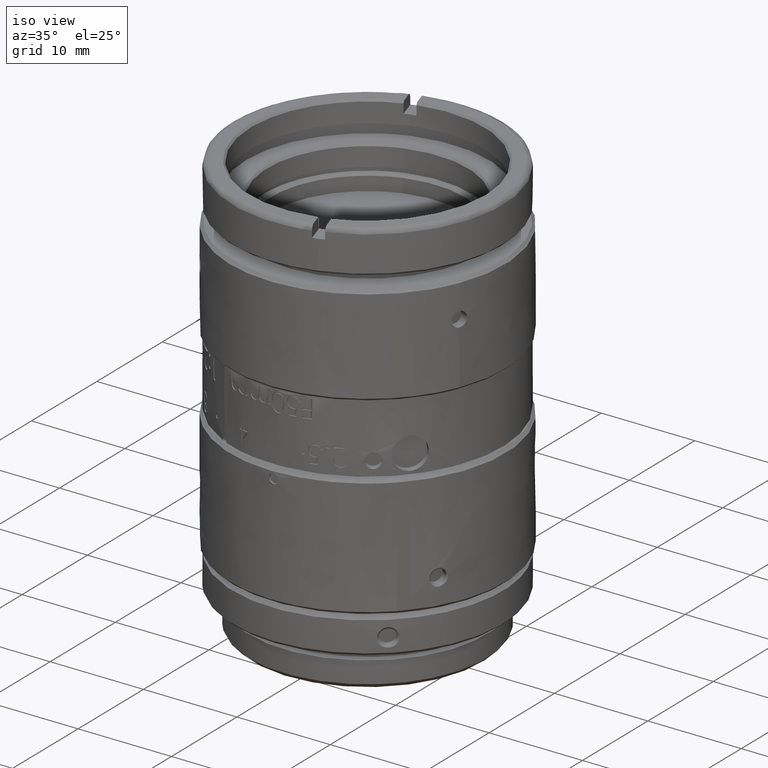
[diagram: clean part render]
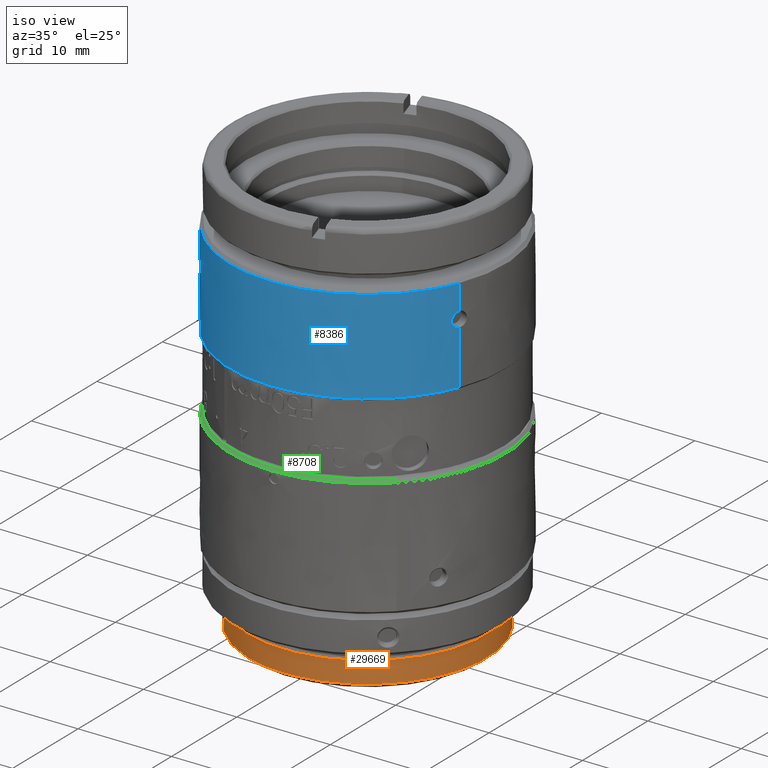
[diagram: same view with three faces highlighted in distinct colors, each labeled with its STEP entity id]
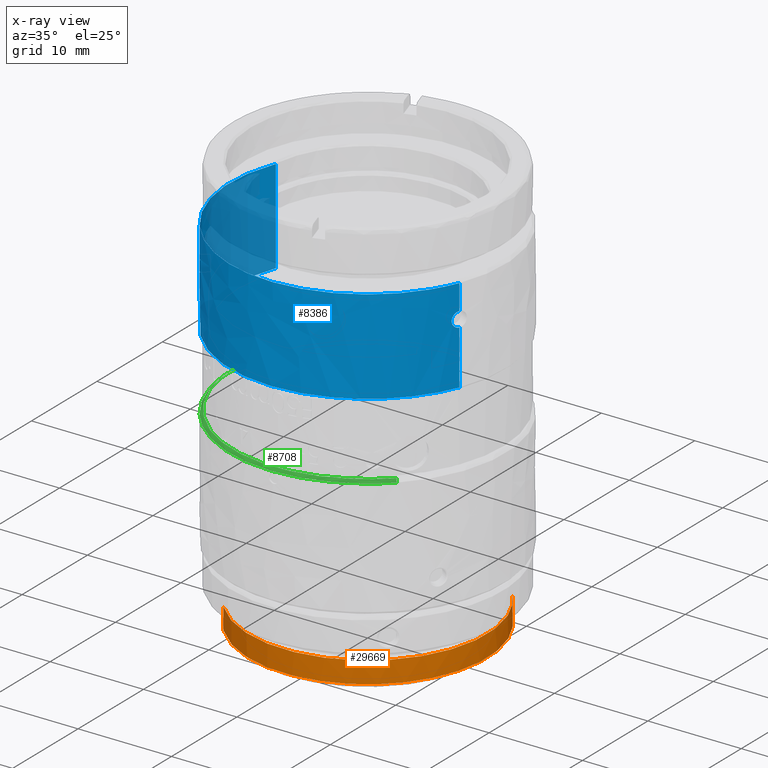
[diagram: x-ray of the same camera — body ghosted, the three highlighted faces saturated]
A machine part, iso view with three faces highlighted in distinct colors.
The next image is the same camera in x-ray (body ghosted, the three faces saturated) — at least one of them is partly hidden behind the body in this view.
Their STEP definitions:

[orange] entity #29669 — the highlighted face is a freeform B-spline surface patch.
#586 = EDGE_CURVE ( 'NONE', #8446, #26066, #36931, .T. ) ;
#1912 = CARTESIAN_POINT ( 'NONE',  ( 14.09362193333980962, -4.440152235878109366, -20.33400299199999850 ) ) ;
#2297 = CARTESIAN_POINT ( 'NONE',  ( 10.01426864739965872, 7.935854617584350734, -18.03400299199999779 ) ) ;
#2491 = CARTESIAN_POINT ( 'NONE',  ( 2.691176087841211206, -12.49083409748489792, -18.03400299200000489 ) ) ;
#2926 = CARTESIAN_POINT ( 'NONE',  ( 9.452440149999999264, 8.556510690999999724, -20.33400299199999850 ) ) ;
#3205 = CARTESIAN_POINT ( 'NONE',  ( -4.440152238768755311, -14.09362193242912120, -20.33400299199999850 ) ) ;
#3238 = CARTESIAN_POINT ( 'NONE',  ( 9.452440147826170147, 8.556510690219679915, -18.03400299200000134 ) ) ;
#3703 = CARTESIAN_POINT ( 'NONE',  ( 9.452440149999999264, 8.556510690999999724, -20.33400299199999850 ) ) ;
#3820 = EDGE_CURVE ( 'NONE', #26066, #7376, #12356, .T. ) ;
#4636 = CARTESIAN_POINT ( 'NONE',  ( -4.440152238768759752, -14.09362193242911587, -18.03400299200000134 ) ) ;
#5204 = CARTESIAN_POINT ( 'NONE',  ( 12.77584863667640747, 0.2026250590301136856, -18.03400299200000134 ) ) ;
#5394 = CARTESIAN_POINT ( 'NONE',  ( -1.469660650535759894, -12.69265389404754352, -18.03400299200000134 ) ) ;
#7376 = VERTEX_POINT ( 'NONE', #3703 ) ;
#7545 = FACE_OUTER_BOUND ( 'NONE', #15834, .T. ) ;
#7738 = CARTESIAN_POINT ( 'NONE',  ( -9.452440153509938270, -8.556510687122543146, -18.03400299200000134 ) ) ;
#7922 = CARTESIAN_POINT ( 'NONE',  ( 7.935854617584363169, -10.01426864739964806, -18.03400299199999779 ) ) ;
#8259 = CARTESIAN_POINT ( 'NONE',  ( -9.452440149999999264, -8.556510690999999724, -20.33400299199999850 ) ) ;
#8446 = VERTEX_POINT ( 'NONE', #37193 ) ;
#8500 = CARTESIAN_POINT ( 'NONE',  ( 9.452440147826170147, 8.556510690219679915, -18.03400299200000134 ) ) ;
#8694 = CARTESIAN_POINT ( 'NONE',  ( 11.37005572431445977, 5.829682528603695957, -18.03400299200000134 ) ) ;
#9036 = CARTESIAN_POINT ( 'NONE',  ( 14.46472806701254044, 3.019399447749500531, -20.33400299199999850 ) ) ;
#10598 = B_SPLINE_CURVE_WITH_KNOTS ( 'NONE', 3,
 ( #35266, #31576, #32161, #37789, #11042, #11429, #17440, #20143, #5394, #13741, #22852, #2491, #14336, #11232, #26346, #37594, #7922, #34690, #23045, #26150, #31772, #25768, #23439, #25568, #23243, #5204, #19942, #37406, #17049, #28871, #8694, #35075, #2297, #8500 ),
 .UNSPECIFIED., .F., .F.,
 ( 4, 2, 2, 2, 2, 2, 2, 2, 2, 2, 2, 2, 2, 2, 2, 2, 4 ),
 ( 3.877282678615039835, 4.073632219464402127, 4.269981760313763530, 4.466331301163125822, 4.662680842012488114, 4.859030382861850406, 5.055379923711211809, 5.251729464560574101, 5.448079005409935505, 5.644428546259297796, 5.840778087108660088, 6.037127627958021492, 6.233477168807382895, 6.429826709656744299, 6.626176250506107479, 6.822525791355468883, 7.018875332204830286 ),
 .UNSPECIFIED. ) ;
#10666 = CARTESIAN_POINT ( 'NONE',  ( 8.556510689061271435, -9.452440151754968767, -20.33400299199999850 ) ) ;
#11042 = CARTESIAN_POINT ( 'NONE',  ( -6.215057767382758058, -11.16406836682318193, -18.03400299199999779 ) ) ;
#11232 = CARTESIAN_POINT ( 'NONE',  ( 5.076306755173630059, -11.72580380451822357, -18.03400299200000134 ) ) ;
#11429 = CARTESIAN_POINT ( 'NONE',  ( -4.701904462277791907, -11.88088631942793327, -18.03400299200000134 ) ) ;
#12356 =( BOUNDED_CURVE ( )  B_SPLINE_CURVE ( 3, ( #29073, #3205, #14858, #26683, #35599, #9036, #32690 ),
 .UNSPECIFIED., .F., .T. ) 
 B_SPLINE_CURVE_WITH_KNOTS ( ( 4, 3, 4 ),
 ( -7.018875332204830286, -5.448079005409935505, -3.877282678615039835 ),
 .UNSPECIFIED. ) 
 CURVE ( )  GEOMETRIC_REPRESENTATION_ITEM ( )  RATIONAL_B_SPLINE_CURVE ( ( 1.000000000000000000, 0.8047378540760217192, 0.8047378540760217192, 1.000000000000000000, 0.8047378540760217192, 0.8047378540760217192, 1.000000000000000000 ) ) 
 REPRESENTATION_ITEM ( '' )  );
#13741 = CARTESIAN_POINT ( 'NONE',  ( 0.2026250590301297283, -12.77584863667641102, -18.03400299199999779 ) ) ;
#14336 = CARTESIAN_POINT ( 'NONE',  ( 3.499478974160446398, -12.28889794128224189, -18.03400299200000134 ) ) ;
#14858 = CARTESIAN_POINT ( 'NONE',  ( 3.019399444782739028, -14.46472806763182994, -20.33400299199999850 ) ) ;
#15796 = ORIENTED_EDGE ( 'NONE', *, *, #586, .T. ) ;
#15834 = EDGE_LOOP ( 'NONE', ( #15796, #34970, #25566, #37362 ) ) ;
#16993 = VERTEX_POINT ( 'NONE', #3238 ) ;
#17049 = CARTESIAN_POINT ( 'NONE',  ( 12.28889794128223656, 3.499478974160471267, -18.03400299200000134 ) ) ;
#17440 = CARTESIAN_POINT ( 'NONE',  ( -3.917635443712708110, -12.16205152661567546, -18.03400299200000134 ) ) ;
#18319 = EDGE_CURVE ( 'NONE', #8446, #16993, #10598, .T. ) ;
#18750 = EDGE_CURVE ( 'NONE', #7376, #16993, #19371, .T. ) ;
#19371 = B_SPLINE_CURVE_WITH_KNOTS ( 'NONE', 1,
 ( #2926, #20957 ),
 .UNSPECIFIED., .F., .F.,
 ( 2, 2 ),
 ( -1.000000000000000000, 0.0000000000000000000 ),
 .UNSPECIFIED. ) ;
#19769 = CARTESIAN_POINT ( 'NONE',  ( 8.556510689061271435, -9.452440151754968767, -18.03400299200000134 ) ) ;
#19942 = CARTESIAN_POINT ( 'NONE',  ( 12.73548466205848939, 1.034792392850838905, -18.03400299200000134 ) ) ;
#20143 = CARTESIAN_POINT ( 'NONE',  ( -2.293712751084343804, -12.56989447203539534, -18.03400299200000489 ) ) ;
#20281 = CARTESIAN_POINT ( 'NONE',  ( -9.452440150678338426, -8.556510687068859866, -18.03400299200000134 ) ) ;
#20957 = CARTESIAN_POINT ( 'NONE',  ( 9.452440147826170147, 8.556510690219679915, -18.03400299200000134 ) ) ;
#22477 = CARTESIAN_POINT ( 'NONE',  ( 14.46472806701254221, 3.019399447749500087, -18.03400299200000134 ) ) ;
#22700 =( BOUNDED_SURFACE ( )  B_SPLINE_SURFACE ( 1, 3, ( 
 ( #34318, #22477, #37227, #19769, #33919, #4636, #7738 ),
 ( #28490, #31395, #1912, #10666, #25196, #37030, #25584 ) ),
 .UNSPECIFIED., .F., .F., .T. ) 
 B_SPLINE_SURFACE_WITH_KNOTS ( ( 2, 2 ),
 ( 4, 3, 4 ),
 ( 0.0000000000000000000, 1.000000000000000000 ),
 ( 0.0000000000000000000, 0.5000000000000000000, 1.000000000000000000 ),
 .UNSPECIFIED. ) 
 GEOMETRIC_REPRESENTATION_ITEM ( )  RATIONAL_B_SPLINE_SURFACE ( (
 ( 1.000000000000000000, 0.8047378540760217192, 0.8047378540760217192, 1.000000000000000000, 0.8047378540760217192, 0.8047378540760217192, 1.000000000000000000),
 ( 1.000000000000000000, 0.8047378540760217192, 0.8047378540760217192, 1.000000000000000000, 0.8047378540760217192, 0.8047378540760217192, 1.000000000000000000) ) ) 
 REPRESENTATION_ITEM ( '' )  SURFACE ( )  );
#22852 = CARTESIAN_POINT ( 'NONE',  ( 1.034792392850814480, -12.73548466205849117, -18.03400299199999424 ) ) ;
#23045 = CARTESIAN_POINT ( 'NONE',  ( 9.737056317180268650, -8.273638854562976874, -18.03400299200000134 ) ) ;
#23243 = CARTESIAN_POINT ( 'NONE',  ( 12.69265389404753996, -1.469660650535744351, -18.03400299199999424 ) ) ;
#23439 = CARTESIAN_POINT ( 'NONE',  ( 12.16205152661567901, -3.917635443712687238, -18.03400299200000134 ) ) ;
#25196 = CARTESIAN_POINT ( 'NONE',  ( 3.019399444782734143, -14.46472806763183172, -20.33400299199999850 ) ) ;
#25566 = ORIENTED_EDGE ( 'NONE', *, *, #18750, .T. ) ;
#25568 = CARTESIAN_POINT ( 'NONE',  ( 12.56989447203538823, -2.293712751084368673, -18.03400299199999779 ) ) ;
#25584 = CARTESIAN_POINT ( 'NONE',  ( -9.452440153509938270, -8.556510687122543146, -20.33400299199999850 ) ) ;
#25768 = CARTESIAN_POINT ( 'NONE',  ( 11.88088631942793150, -4.701904462277787466, -18.03400299200000134 ) ) ;
#26066 = VERTEX_POINT ( 'NONE', #30854 ) ;
#26150 = CARTESIAN_POINT ( 'NONE',  ( 10.73530235251893927, -6.929404630534406806, -18.03400299200000134 ) ) ;
#26346 = CARTESIAN_POINT ( 'NONE',  ( 5.829682528603718161, -11.37005572431444556, -18.03400299200000134 ) ) ;
#26683 = CARTESIAN_POINT ( 'NONE',  ( 8.556510689061274988, -9.452440151754966990, -20.33400299199999850 ) ) ;
#28490 = CARTESIAN_POINT ( 'NONE',  ( 9.452440149999999264, 8.556510690999999724, -20.33400299199999850 ) ) ;
#28871 = CARTESIAN_POINT ( 'NONE',  ( 11.72580380451823423, 5.076306755173606966, -18.03400299200000134 ) ) ;
#29073 = CARTESIAN_POINT ( 'NONE',  ( -9.452440149999999264, -8.556510690999999724, -20.33400299199999850 ) ) ;
#29669 = ADVANCED_FACE ( 'NONE', ( #7545 ), #22700, .F. ) ;
#30854 = CARTESIAN_POINT ( 'NONE',  ( -9.452440149999999264, -8.556510690999999724, -20.33400299199999850 ) ) ;
#31395 = CARTESIAN_POINT ( 'NONE',  ( 14.46472806701254221, 3.019399447749500087, -20.33400299199999850 ) ) ;
#31576 = CARTESIAN_POINT ( 'NONE',  ( -8.890611642630634748, -9.177166756338655418, -18.03400299200000845 ) ) ;
#31772 = CARTESIAN_POINT ( 'NONE',  ( 11.16406836682317483, -6.215057767382764276, -18.03400299200000134 ) ) ;
#32161 = CARTESIAN_POINT ( 'NONE',  ( -8.273638854562976874, -9.737056317180273979, -18.03400299200000845 ) ) ;
#32690 = CARTESIAN_POINT ( 'NONE',  ( 9.452440149999999264, 8.556510690999999724, -20.33400299199999850 ) ) ;
#33919 = CARTESIAN_POINT ( 'NONE',  ( 3.019399444782734143, -14.46472806763183172, -18.03400299200000134 ) ) ;
#34318 = CARTESIAN_POINT ( 'NONE',  ( 9.452440149999999264, 8.556510690999999724, -18.03400299200000134 ) ) ;
#34690 = CARTESIAN_POINT ( 'NONE',  ( 9.177166756338642983, -8.890611642630647182, -18.03400299200000134 ) ) ;
#34970 = ORIENTED_EDGE ( 'NONE', *, *, #3820, .T. ) ;
#35075 = CARTESIAN_POINT ( 'NONE',  ( 10.51015746373641768, 7.266357772037366658, -18.03400299200000134 ) ) ;
#35266 = CARTESIAN_POINT ( 'NONE',  ( -9.452440150678338426, -8.556510687068859866, -18.03400299200000134 ) ) ;
#35599 = CARTESIAN_POINT ( 'NONE',  ( 14.09362193333981317, -4.440152235878106701, -20.33400299199999850 ) ) ;
#36931 = B_SPLINE_CURVE_WITH_KNOTS ( 'NONE', 1,
 ( #20281, #8259 ),
 .UNSPECIFIED., .F., .F.,
 ( 2, 2 ),
 ( -1.000000000000000000, 0.0000000000000000000 ),
 .UNSPECIFIED. ) ;
#37030 = CARTESIAN_POINT ( 'NONE',  ( -4.440152238768759752, -14.09362193242911587, -20.33400299199999850 ) ) ;
#37193 = CARTESIAN_POINT ( 'NONE',  ( -9.452440150678338426, -8.556510687068859866, -18.03400299200000134 ) ) ;
#37227 = CARTESIAN_POINT ( 'NONE',  ( 14.09362193333980962, -4.440152235878109366, -18.03400299200000134 ) ) ;
#37362 = ORIENTED_EDGE ( 'NONE', *, *, #18319, .F. ) ;
#37406 = CARTESIAN_POINT ( 'NONE',  ( 12.49083409748490148, 2.691176087841189002, -18.03400299200000134 ) ) ;
#37594 = CARTESIAN_POINT ( 'NONE',  ( 7.266357772037350671, -10.51015746373642479, -18.03400299200000134 ) ) ;
#37789 = CARTESIAN_POINT ( 'NONE',  ( -6.929404630534409470, -10.73530235251894283, -18.03400299200000134 ) ) ;

[blue] entity #8386 — the highlighted face is a freeform B-spline surface patch.
#165 = CARTESIAN_POINT ( 'NONE',  ( 13.68235708167017961, -5.509592062819060665, 14.01599700981326002 ) ) ;
#555 = CARTESIAN_POINT ( 'NONE',  ( -13.68235708288267993, 5.509592059807990161, 8.215997007999998658 ) ) ;
#664 = CARTESIAN_POINT ( 'NONE',  ( -11.51556347944723591, -9.217726514464605003, 15.60224241035068715 ) ) ;
#1420 = CARTESIAN_POINT ( 'NONE',  ( -11.24639722347032844, -9.543675491048857040, 15.36757187291662774 ) ) ;
#2373 = CARTESIAN_POINT ( 'NONE',  ( -13.68235708288267993, 5.509592059807990161, 8.215997007999998658 ) ) ;
#2585 = VERTEX_POINT ( 'NONE', #26540 ) ;
#2599 = CARTESIAN_POINT ( 'NONE',  ( -11.95763573701262317, -8.635845591770307195, 14.25851714775831702 ) ) ;
#2714 = CARTESIAN_POINT ( 'NONE',  ( 2.663172958595262152, -32.87430621033874445, 18.31599700800000363 ) ) ;
#2789 = CARTESIAN_POINT ( 'NONE',  ( -11.61773550855505555, -9.088251009621709287, 14.01603114193942723 ) ) ;
#3261 = CARTESIAN_POINT ( 'NONE',  ( -13.68235708200000111, 5.509592062000000290, 18.31599700800000008 ) ) ;
#3287 = CARTESIAN_POINT ( 'NONE',  ( 13.68235708200000111, -5.509592062000000290, 18.31599700800000008 ) ) ;
#3446 = ORIENTED_EDGE ( 'NONE', *, *, #30664, .T. ) ;
#3720 = CARTESIAN_POINT ( 'NONE',  ( 13.68235708167017961, -5.509592062819060665, 14.01599700981326002 ) ) ;
#4028 = B_SPLINE_CURVE_WITH_KNOTS ( 'NONE', 3,
 ( #21490, #18942, #24204, #33122, #6559, #15182 ),
 .UNSPECIFIED., .F., .F.,
 ( 4, 2, 4 ),
 ( -1.000000000000000000, -0.5000000000000000000, 0.0000000000000000000 ),
 .UNSPECIFIED. ) ;
#4070 = CARTESIAN_POINT ( 'NONE',  ( -24.70154119053584196, -21.85512209599322020, 8.215997007999998658 ) ) ;
#5109 = CARTESIAN_POINT ( 'NONE',  ( -13.52453127885180173, -10.45491277192476076, 18.31599700800002850 ) ) ;
#5121 = CARTESIAN_POINT ( 'NONE',  ( -11.62340584578138980, -9.081252532821091350, 14.01614781796579301 ) ) ;
#5295 = VERTEX_POINT ( 'NONE', #3287 ) ;
#5312 = CARTESIAN_POINT ( 'NONE',  ( -11.61548858936645345, -9.090996606908896993, 14.01600885342631564 ) ) ;
#5700 = CARTESIAN_POINT ( 'NONE',  ( -11.10346680085514137, -9.711858809678208360, 14.60655478045492650 ) ) ;
#6040 = CARTESIAN_POINT ( 'NONE',  ( 13.36339234489444117, -6.243576302392490618, 14.81600063145799950 ) ) ;
#6092 = CARTESIAN_POINT ( 'NONE',  ( 13.68235708288267993, -5.509592059807990161, 8.215997007999998658 ) ) ;
#6559 = CARTESIAN_POINT ( 'NONE',  ( 13.36674891276259203, -6.244927917667555839, 15.02543554817104621 ) ) ;
#6677 = CARTESIAN_POINT ( 'NONE',  ( -11.61066778704470259, -9.097117186970308467, 15.61599694167146168 ) ) ;
#6716 = EDGE_CURVE ( 'NONE', #14126, #5295, #16530, .T. ) ;
#6734 = CARTESIAN_POINT ( 'NONE',  ( -11.10227277600935913, -9.710923706208038908, 14.81599700978543943 ) ) ;
#6868 = CARTESIAN_POINT ( 'NONE',  ( -11.61130963459434007, -9.096245962965676668, 15.61599478686907716 ) ) ;
#7053 = CARTESIAN_POINT ( 'NONE',  ( -11.33275258987730361, -9.441464674763734521, 15.50346821470424352 ) ) ;
#7426 = EDGE_CURVE ( 'NONE', #2585, #19503, #8631, .T. ) ;
#7433 = CARTESIAN_POINT ( 'NONE',  ( 13.68235708200000111, -5.509592062000000290, 18.31599700800000008 ) ) ;
#8029 = CARTESIAN_POINT ( 'NONE',  ( -11.70902274838069168, -8.970700466981080368, 14.02975135233807791 ) ) ;
#8211 = CARTESIAN_POINT ( 'NONE',  ( 13.68235708200000111, -5.509592062000000290, 18.31599700800000008 ) ) ;
#8386 = ADVANCED_FACE ( 'NONE', ( #10879, #34128 ), #22747, .F. ) ;
#8416 = CARTESIAN_POINT ( 'NONE',  ( -11.80127128629628608, -8.848445993535943188, 14.07096678169651405 ) ) ;
#8466 = CARTESIAN_POINT ( 'NONE',  ( 13.68235671890329996, -5.509592962936210370, 15.61599700600589991 ) ) ;
#8609 = CARTESIAN_POINT ( 'NONE',  ( -11.65055604071091544, -9.046823570338743181, 14.01812594407291179 ) ) ;
#8631 = B_SPLINE_CURVE_WITH_KNOTS ( 'NONE', 3,
 ( #6040, #36657, #36467, #37041, #34327, #31207, #22488, #34124, #21730, #27549 ),
 .UNSPECIFIED., .F., .F.,
 ( 4, 2, 2, 2, 4 ),
 ( 0.0000000000000000000, 0.2500000000000000000, 0.5000000000000000000, 0.7500000000000000000, 1.000000000000000000 ),
 .UNSPECIFIED. ) ;
#9417 = CARTESIAN_POINT ( 'NONE',  ( -11.73724803577634113, -8.926065243232622848, 15.61600127666865312 ) ) ;
#9600 = CARTESIAN_POINT ( 'NONE',  ( -11.58489585566725921, -9.130704588995085302, 15.61480209819819009 ) ) ;
#9920 = EDGE_LOOP ( 'NONE', ( #27573, #18632 ) ) ;
#9977 = CARTESIAN_POINT ( 'NONE',  ( -11.59690585113510686, -9.115218318130612118, 15.61560031027322282 ) ) ;
#10097 = CARTESIAN_POINT ( 'NONE',  ( -24.70154119053584196, -21.85512209599322020, 18.31599700800000363 ) ) ;
#10177 = CARTESIAN_POINT ( 'NONE',  ( -12.08879185901382058, -8.451249103484791192, 14.81599700961455746 ) ) ;
#10879 = FACE_OUTER_BOUND ( 'NONE', #21776, .T. ) ;
#11153 = CARTESIAN_POINT ( 'NONE',  ( -11.88242565701219355, -8.739593483527569262, 14.12852521825215213 ) ) ;
#11351 = CARTESIAN_POINT ( 'NONE',  ( -11.95817458981677106, -8.635102045816614336, 14.25948013214878252 ) ) ;
#11922 = CARTESIAN_POINT ( 'NONE',  ( -12.04590873322286271, -8.513509739088714667, 14.47288103449846552 ) ) ;
#12894 = CARTESIAN_POINT ( 'NONE',  ( -11.24183482926203759, -9.549073705345437091, 15.36011974946032943 ) ) ;
#13278 = CARTESIAN_POINT ( 'NONE',  ( -11.57545528086257924, -9.142718969472344526, 15.61386800823280474 ) ) ;
#13461 = CARTESIAN_POINT ( 'NONE',  ( -5.509592064806295930, -13.68235708086996816, 18.31599700800001784 ) ) ;
#14126 = VERTEX_POINT ( 'NONE', #3261 ) ;
#14817 = CARTESIAN_POINT ( 'NONE',  ( -11.15864976893979765, -9.645560539840113634, 14.39840232878442983 ) ) ;
#15182 = CARTESIAN_POINT ( 'NONE',  ( 13.36339234489444117, -6.243576302392490618, 14.81600063145799950 ) ) ;
#15378 = ORIENTED_EDGE ( 'NONE', *, *, #6716, .F. ) ;
#15614 = CARTESIAN_POINT ( 'NONE',  ( -12.08998563505075019, -8.452184013014337083, 15.02543923575024465 ) ) ;
#15714 = ORIENTED_EDGE ( 'NONE', *, *, #33989, .T. ) ;
#15960 = EDGE_CURVE ( 'NONE', #14126, #16903, #30142, .T. ) ;
#16530 =( BOUNDED_CURVE ( )  B_SPLINE_CURVE ( 3, ( #28192, #28577, #5109, #13461, #33812, #34004, #7433 ),
 .UNSPECIFIED., .F., .T. ) 
 B_SPLINE_CURVE_WITH_KNOTS ( ( 4, 3, 4 ),
 ( -5.900371948017450130, -4.329575621222552684, -2.758779294427655238 ),
 .UNSPECIFIED. ) 
 CURVE ( )  GEOMETRIC_REPRESENTATION_ITEM ( )  RATIONAL_B_SPLINE_CURVE ( ( 1.000000000000000000, 0.8047378540760217192, 0.8047378540760217192, 1.000000000000000000, 0.8047378540760217192, 0.8047378540760217192, 1.000000000000000000 ) ) 
 REPRESENTATION_ITEM ( '' )  );
#16803 = ORIENTED_EDGE ( 'NONE', *, *, #33930, .F. ) ;
#16903 = VERTEX_POINT ( 'NONE', #555 ) ;
#17163 = CARTESIAN_POINT ( 'NONE',  ( -11.10227277600935913, -9.710923706208038908, 14.81599700978543943 ) ) ;
#17277 = CARTESIAN_POINT ( 'NONE',  ( 13.68235708101055259, -5.509592064457166316, 18.31599700800000008 ) ) ;
#17357 = CARTESIAN_POINT ( 'NONE',  ( -12.03185439175387472, -8.533120614538120208, 14.42582035854628764 ) ) ;
#17899 = CARTESIAN_POINT ( 'NONE',  ( 13.68235708288267993, -5.509592059807990161, 8.215997007999998658 ) ) ;
#18069 = CARTESIAN_POINT ( 'NONE',  ( -13.68235708288267993, 5.509592059807990161, 8.215997007999998658 ) ) ;
#18512 = CARTESIAN_POINT ( 'NONE',  ( -11.86191425784278763, -8.759306997472556588, 15.52978470782020359 ) ) ;
#18546 = VERTEX_POINT ( 'NONE', #6092 ) ;
#18632 = ORIENTED_EDGE ( 'NONE', *, *, #25823, .F. ) ;
#18697 = CARTESIAN_POINT ( 'NONE',  ( -11.25005462177046844, -9.539347583727323610, 15.37347697486235809 ) ) ;
#18814 = CARTESIAN_POINT ( 'NONE',  ( 13.68235708101055259, -5.509592064457166316, 8.215997007999998658 ) ) ;
#18883 = CARTESIAN_POINT ( 'NONE',  ( -11.60780948467488649, -9.100925458729230755, 15.61596287247613546 ) ) ;
#18942 = CARTESIAN_POINT ( 'NONE',  ( 13.60076641248455154, -5.702524685230715207, 15.61599548439157559 ) ) ;
#19503 = VERTEX_POINT ( 'NONE', #165 ) ;
#19865 = CARTESIAN_POINT ( 'NONE',  ( -12.08934767587951598, -8.451684392750836494, 14.71835924846811317 ) ) ;
#20062 = CARTESIAN_POINT ( 'NONE',  ( -11.68255672210671037, -9.005419462689363996, 14.02327518324998401 ) ) ;
#20214 = CARTESIAN_POINT ( 'NONE',  ( -13.68235708200000111, 5.509592062000000290, 18.31599700800000008 ) ) ;
#20247 = CARTESIAN_POINT ( 'NONE',  ( -11.61472341055928403, -9.091938601059817771, 14.01599707432988495 ) ) ;
#20440 = CARTESIAN_POINT ( 'NONE',  ( -11.96510793733801137, -8.625534850279857224, 14.27187365463405300 ) ) ;
#20973 = CARTESIAN_POINT ( 'NONE',  ( 13.68235708288267993, -5.509592059807990161, 8.215997007999998658 ) ) ;
#21490 = CARTESIAN_POINT ( 'NONE',  ( 13.68235671890329996, -5.509592962936210370, 15.61599700600589991 ) ) ;
#21612 = CARTESIAN_POINT ( 'NONE',  ( -11.11497170781224142, -9.697872203691716209, 15.01448627950382075 ) ) ;
#21730 = CARTESIAN_POINT ( 'NONE',  ( 13.65391210612216533, -5.580231468696684516, 14.01599700819073924 ) ) ;
#21776 = EDGE_LOOP ( 'NONE', ( #3446, #15714, #38195, #16803, #29137, #15378, #37258 ) ) ;
#21803 = CARTESIAN_POINT ( 'NONE',  ( -11.24946175527193937, -9.540049102633137323, 15.37251376918943180 ) ) ;
#21987 = CARTESIAN_POINT ( 'NONE',  ( -11.15243889782633069, -9.654370416861780768, 15.15910692775467794 ) ) ;
#22488 = CARTESIAN_POINT ( 'NONE',  ( 13.54182151963166270, -5.846480850519602868, 14.09644702021411788 ) ) ;
#22514 = B_SPLINE_CURVE_WITH_KNOTS ( 'NONE', 1,
 ( #22949, #8211 ),
 .UNSPECIFIED., .F., .F.,
 ( 2, 2 ),
 ( -1.000000000000000000, 0.0000000000000000000 ),
 .UNSPECIFIED. ) ;
#22747 =( BOUNDED_SURFACE ( )  B_SPLINE_SURFACE ( 1, 3, ( 
 ( #37436, #4070, #33556, #18814 ),
 ( #36660, #10097, #2714, #17277 ) ),
 .UNSPECIFIED., .F., .F., .T. ) 
 B_SPLINE_SURFACE_WITH_KNOTS ( ( 2, 2 ),
 ( 4, 4 ),
 ( 0.0000000000000000000, 1.000000000000000000 ),
 ( 0.0000000000000000000, 1.000000000000000000 ),
 .UNSPECIFIED. ) 
 GEOMETRIC_REPRESENTATION_ITEM ( )  RATIONAL_B_SPLINE_SURFACE ( (
 ( 1.000000000000000000, 0.3333333335299311084, 0.3333333335299311084, 1.000000000000000000),
 ( 1.000000000000000000, 0.3333333335299311084, 0.3333333335299311084, 1.000000000000000000) ) ) 
 REPRESENTATION_ITEM ( '' )  SURFACE ( )  );
#22949 = CARTESIAN_POINT ( 'NONE',  ( 13.68235671890329996, -5.509592962936210370, 15.61599700600589991 ) ) ;
#23161 = CARTESIAN_POINT ( 'NONE',  ( -11.62899828339395292, -9.074239799992412259, 14.01639369047473238 ) ) ;
#24204 = CARTESIAN_POINT ( 'NONE',  ( 13.51965988339253322, -5.894255010833521879, 15.52977632578964595 ) ) ;
#24893 = CARTESIAN_POINT ( 'NONE',  ( -11.41898168920269363, -9.336587263974800877, 15.56102674407622999 ) ) ;
#25628 = VERTEX_POINT ( 'NONE', #8466 ) ;
#25823 = EDGE_CURVE ( 'NONE', #30294, #27282, #26777, .T. ) ;
#25877 = CARTESIAN_POINT ( 'NONE',  ( -12.00638343143182496, -8.568469527267957631, 14.35862153864759883 ) ) ;
#26458 = CARTESIAN_POINT ( 'NONE',  ( -12.08879185901382058, -8.451249103484791192, 14.81599700961455746 ) ) ;
#26540 = CARTESIAN_POINT ( 'NONE',  ( 13.36339234489444117, -6.243576302392490618, 14.81600063145799950 ) ) ;
#26639 = CARTESIAN_POINT ( 'NONE',  ( -11.98227164402479872, -8.601830547496865265, 14.30510525971986802 ) ) ;
#26777 = B_SPLINE_CURVE_WITH_KNOTS ( 'NONE', 3,
 ( #26458, #19865, #35181, #11922, #17357, #25877, #34799, #26639, #28788, #20440, #34991, #11351, #2599, #11153, #8416, #8029, #20062, #8609, #38092, #23161, #5121, #2789, #5312, #31885, #20247, #38278, #32268, #14817, #5700, #17163 ),
 .UNSPECIFIED., .F., .F.,
 ( 4, 2, 2, 2, 1, 1, 2, 2, 2, 2, 2, 1, 1, 2, 2, 2, 4 ),
 ( -1.000000000000000000, -0.8749999999999404920, -0.8124999999999107381, -0.7812499999998967493, -0.7656249999998898659, -0.7578124999998869793, -0.7539062499998860911, -0.7499999999998853140, -0.6249999999998555600, -0.5624999999998417932, -0.5312499999998337996, -0.5156249999998298028, -0.5078124999998279154, -0.5039062499998273603, -0.4999999999998268052, -0.2499999999999134026, 0.0000000000000000000 ),
 .UNSPECIFIED. ) ;
#26861 = EDGE_CURVE ( 'NONE', #27282, #30294, #30791, .T. ) ;
#27244 = CARTESIAN_POINT ( 'NONE',  ( -11.22293441831793182, -9.571419147801568883, 15.32688689404747606 ) ) ;
#27282 = VERTEX_POINT ( 'NONE', #6734 ) ;
#27549 = CARTESIAN_POINT ( 'NONE',  ( 13.68235708167017961, -5.509592062819060665, 14.01599700981326002 ) ) ;
#27573 = ORIENTED_EDGE ( 'NONE', *, *, #26861, .F. ) ;
#27622 = CARTESIAN_POINT ( 'NONE',  ( -11.19632399291704061, -9.602824596692242309, 15.27336886822307171 ) ) ;
#28001 = CARTESIAN_POINT ( 'NONE',  ( -11.20651109090116648, -9.590813265269408916, 15.29520256697174041 ) ) ;
#28192 = CARTESIAN_POINT ( 'NONE',  ( -13.68235708200000111, 5.509592062000000290, 18.31599700800000008 ) ) ;
#28577 = CARTESIAN_POINT ( 'NONE',  ( -16.90980139032902940, -2.505347145770955741, 18.31599700800003561 ) ) ;
#28788 = CARTESIAN_POINT ( 'NONE',  ( -11.97456001771211476, -8.612486194728276701, 14.28953026380866298 ) ) ;
#29137 = ORIENTED_EDGE ( 'NONE', *, *, #34756, .T. ) ;
#29512 = CARTESIAN_POINT ( 'NONE',  ( 2.663172958595260376, -32.87430621033875866, 8.215997007999998658 ) ) ;
#30142 = B_SPLINE_CURVE_WITH_KNOTS ( 'NONE', 1,
 ( #20214, #2373 ),
 .UNSPECIFIED., .F., .F.,
 ( 2, 2 ),
 ( -1.000000000000000000, 0.0000000000000000000 ),
 .UNSPECIFIED. ) ;
#30158 = CARTESIAN_POINT ( 'NONE',  ( -11.10282845226755555, -9.711358884329973407, 14.91363028466004970 ) ) ;
#30294 = VERTEX_POINT ( 'NONE', #10177 ) ;
#30341 = CARTESIAN_POINT ( 'NONE',  ( -12.03884538491852396, -8.521648353077342364, 15.23359168719549928 ) ) ;
#30525 = CARTESIAN_POINT ( 'NONE',  ( -12.08879185901382058, -8.451249103484791192, 14.81599700961455746 ) ) ;
#30587 = CARTESIAN_POINT ( 'NONE',  ( -24.70154119053585973, -21.85512209599322375, 8.215997007999998658 ) ) ;
#30664 = EDGE_CURVE ( 'NONE', #16903, #18546, #34377, .T. ) ;
#30791 = B_SPLINE_CURVE_WITH_KNOTS ( 'NONE', 3,
 ( #33624, #30158, #21612, #21987, #36348, #27622, #28001, #27244, #33816, #12894, #1420, #21803, #18697, #7053, #24893, #664, #36161, #13278, #9600, #9977, #35972, #18883, #33248, #6868, #6677, #9417, #18512, #30341, #15614, #30525 ),
 .UNSPECIFIED., .F., .F.,
 ( 4, 2, 2, 2, 1, 1, 2, 2, 2, 2, 2, 1, 1, 2, 2, 2, 4 ),
 ( -1.000000000000000000, -0.8750000000000051070, -0.8125000000000077716, -0.7812500000000102141, -0.7656250000000126565, -0.7578125000000127676, -0.7539062500000122125, -0.7500000000000117684, -0.6250000000000215383, -0.5625000000000273115, -0.5312500000000301981, -0.5156250000000315303, -0.5078125000000326406, -0.5039062500000326406, -0.5000000000000326406, -0.2500000000000163203, 0.0000000000000000000 ),
 .UNSPECIFIED. ) ;
#31207 = CARTESIAN_POINT ( 'NONE',  ( 13.49948355825253898, -5.944353856773697764, 14.15616181075661295 ) ) ;
#31885 = CARTESIAN_POINT ( 'NONE',  ( -11.61403137898682125, -9.092770591964095317, 14.01599922902043183 ) ) ;
#32268 = CARTESIAN_POINT ( 'NONE',  ( -11.34697616914094276, -9.416826147779893574, 14.10220930801862060 ) ) ;
#33122 = CARTESIAN_POINT ( 'NONE',  ( 13.40231049999445823, -6.166302546248052074, 15.23358442424035886 ) ) ;
#33248 = CARTESIAN_POINT ( 'NONE',  ( -11.60993657775807364, -9.098085920247449110, 15.61598516201184417 ) ) ;
#33556 = CARTESIAN_POINT ( 'NONE',  ( 2.663172958595262152, -32.87430621033874445, 8.215997007999998658 ) ) ;
#33624 = CARTESIAN_POINT ( 'NONE',  ( -11.10227277600935913, -9.710923706208038908, 14.81599700978543943 ) ) ;
#33812 = CARTESIAN_POINT ( 'NONE',  ( 2.505347149239209870, -16.90980138981517555, 18.31599700800001074 ) ) ;
#33816 = CARTESIAN_POINT ( 'NONE',  ( -11.23143150364608367, -9.561378126278700762, 15.34246245485068272 ) ) ;
#33930 = EDGE_CURVE ( 'NONE', #25628, #2585, #4028, .T. ) ;
#33989 = EDGE_CURVE ( 'NONE', #18546, #19503, #34120, .T. ) ;
#34004 = CARTESIAN_POINT ( 'NONE',  ( 10.45491277469868763, -13.52453127670746724, 18.31599700800000008 ) ) ;
#34120 = B_SPLINE_CURVE_WITH_KNOTS ( 'NONE', 1,
 ( #17899, #3720 ),
 .UNSPECIFIED., .F., .F.,
 ( 2, 2 ),
 ( -1.000000000000000000, 0.0000000000000000000 ),
 .UNSPECIFIED. ) ;
#34124 = CARTESIAN_POINT ( 'NONE',  ( 13.61898626671151824, -5.664542649999846802, 14.02672437658588045 ) ) ;
#34128 = FACE_BOUND ( 'NONE', #9920, .T. ) ;
#34327 = CARTESIAN_POINT ( 'NONE',  ( 13.42233363506547583, -6.116564807436560613, 14.34485780309415404 ) ) ;
#34377 =( BOUNDED_CURVE ( )  B_SPLINE_CURVE ( 3, ( #18069, #30587, #29512, #20973 ),
 .UNSPECIFIED., .F., .T. ) 
 B_SPLINE_CURVE_WITH_KNOTS ( ( 4, 4 ),
 ( -5.900371948017450130, -2.758779294427655238 ),
 .UNSPECIFIED. ) 
 CURVE ( )  GEOMETRIC_REPRESENTATION_ITEM ( )  RATIONAL_B_SPLINE_CURVE ( ( 1.000000000000000000, 0.3333333335299309419, 0.3333333335299309419, 1.000000000000000000 ) ) 
 REPRESENTATION_ITEM ( '' )  );
#34756 = EDGE_CURVE ( 'NONE', #25628, #5295, #22514, .T. ) ;
#34799 = CARTESIAN_POINT ( 'NONE',  ( -11.99716390624920415, -8.581238239041947935, 14.33678850221493661 ) ) ;
#34991 = CARTESIAN_POINT ( 'NONE',  ( -11.96096069365897563, -8.631257844070633567, 14.26442182907482525 ) ) ;
#35181 = CARTESIAN_POINT ( 'NONE',  ( -12.07916351866141724, -8.466707468062825370, 14.61750117494608325 ) ) ;
#35972 = CARTESIAN_POINT ( 'NONE',  ( -11.60237391223810377, -9.108108011619620470, 15.61584619155331310 ) ) ;
#36161 = CARTESIAN_POINT ( 'NONE',  ( -11.54292743614566952, -9.183710623268853013, 15.60871867405260005 ) ) ;
#36348 = CARTESIAN_POINT ( 'NONE',  ( -11.16810967048713188, -9.636025680391075099, 15.20616834768691206 ) ) ;
#36467 = CARTESIAN_POINT ( 'NONE',  ( 13.36822750089615752, -6.233989909429320520, 14.64878539626777609 ) ) ;
#36657 = CARTESIAN_POINT ( 'NONE',  ( 13.36339236709216038, -6.243576307769693301, 14.73994293795275468 ) ) ;
#36660 = CARTESIAN_POINT ( 'NONE',  ( -13.68235708426007413, 5.509592056387403680, 18.31599700800000008 ) ) ;
#37041 = CARTESIAN_POINT ( 'NONE',  ( 13.39757695982366137, -6.170788332272952204, 14.45134417190301512 ) ) ;
#37258 = ORIENTED_EDGE ( 'NONE', *, *, #15960, .T. ) ;
#37436 = CARTESIAN_POINT ( 'NONE',  ( -13.68235708426007413, 5.509592056387403680, 8.215997007999998658 ) ) ;
#38092 = CARTESIAN_POINT ( 'NONE',  ( -11.64115456477528987, -9.058868401851039920, 14.01719187866639871 ) ) ;
#38195 = ORIENTED_EDGE ( 'NONE', *, *, #7426, .F. ) ;
#38278 = CARTESIAN_POINT ( 'NONE',  ( -11.47899494636781803, -9.255826084145931887, 14.01599273924544242 ) ) ;

[green] entity #8708 — the highlighted face is a freeform B-spline surface patch.
#244 = EDGE_LOOP ( 'NONE', ( #4068, #26629, #31627, #21937 ) ) ;
#858 = CARTESIAN_POINT ( 'NONE',  ( -11.55626116679289517, 8.879124799355736286, 0.3159970079999999681 ) ) ;
#2019 = CARTESIAN_POINT ( 'NONE',  ( -10.42982502513918952, -10.42982502086080920, 0.01599700800003489576 ) ) ;
#2855 = CARTESIAN_POINT ( 'NONE',  ( 10.42982502299999936, -10.42982502299999936, 0.01599700800000000006 ) ) ;
#3404 = CARTESIAN_POINT ( 'NONE',  ( 1.893021254986645641, -14.45000000419380726, 0.3159970079999998571 ) ) ;
#4068 = ORIENTED_EDGE ( 'NONE', *, *, #8525, .F. ) ;
#4125 = EDGE_CURVE ( 'NONE', #8533, #30298, #27919, .T. ) ;
#4157 = CARTESIAN_POINT ( 'NONE',  ( -16.53947506751653762, 4.320174983495895127, 0.01599700800006979493 ) ) ;
#4350 = CARTESIAN_POINT ( 'NONE',  ( 10.42982502132906042, -10.42982502467092054, 0.01599700800000000006 ) ) ;
#4599 = CARTESIAN_POINT ( 'NONE',  ( -10.42982502132906042, 10.42982502467092054, 0.01599700800000000006 ) ) ;
#4864 = CARTESIAN_POINT ( 'NONE',  ( -10.21769298356385924, 10.21769298915234003, 0.3159970080000000237 ) ) ;
#4930 = CARTESIAN_POINT ( 'NONE',  ( 4.320174976711296466, -16.53947506928870581, 0.01599700800000000353 ) ) ;
#6124 = CARTESIAN_POINT ( 'NONE',  ( -14.45000000419380015, 1.893021254986595681, 0.3159970080000000237 ) ) ;
#6876 = CARTESIAN_POINT ( 'NONE',  ( -14.07448714326105765, 3.780851993813285628, 0.3159970079999999681 ) ) ;
#7742 = B_SPLINE_CURVE_WITH_KNOTS ( 'NONE', 3,
 ( #18519, #858, #15434, #6876, #6124, #27254, #12158, #32696, #9426, #21247, #26881, #33065, #35982, #3404, #21436, #30349, #9608, #24154 ),
 .UNSPECIFIED., .F., .F.,
 ( 4, 2, 2, 2, 2, 2, 2, 2, 4 ),
 ( 2.356194490192344837, 2.748893571891069421, 3.141592653589793560, 3.534291735288517700, 3.926990816987242283, 4.319689898685966867, 4.712388980384691450, 5.105088062083415146, 5.497787143782139729 ),
 .UNSPECIFIED. ) ;
#8525 = EDGE_CURVE ( 'NONE', #19104, #23876, #10907, .T. ) ;
#8533 = VERTEX_POINT ( 'NONE', #36803 ) ;
#8708 = ADVANCED_FACE ( 'NONE', ( #12549 ), #14619, .F. ) ;
#8868 = CARTESIAN_POINT ( 'NONE',  ( -10.42982502513919307, -10.42982502086080565, 0.01599700800000000006 ) ) ;
#9322 = EDGE_CURVE ( 'NONE', #19104, #30298, #27957, .T. ) ;
#9426 = CARTESIAN_POINT ( 'NONE',  ( -11.55626116679285609, -8.879124799355778919, 0.3159970080000000237 ) ) ;
#9608 = CARTESIAN_POINT ( 'NONE',  ( 8.879124799355729181, -11.55626116679290227, 0.3159970080000000237 ) ) ;
#9632 = CARTESIAN_POINT ( 'NONE',  ( -4.232307014144006452, -16.20307896431124206, 0.3159970080000000792 ) ) ;
#10569 = CARTESIAN_POINT ( 'NONE',  ( -4.320174980103596241, -16.53947506840262349, 0.01599700800001445725 ) ) ;
#10584 = CARTESIAN_POINT ( 'NONE',  ( -16.53947507017478813, -4.320174973318992251, 0.01599700800000000353 ) ) ;
#10907 = B_SPLINE_CURVE_WITH_KNOTS ( 'NONE', 1,
 ( #4599, #30777 ),
 .UNSPECIFIED., .F., .F.,
 ( 2, 2 ),
 ( -1.000000000000000000, 0.0000000000000000000 ),
 .UNSPECIFIED. ) ;
#12158 = CARTESIAN_POINT ( 'NONE',  ( -14.07448714326103634, -3.780851993813330925, 0.3159970080000000237 ) ) ;
#12549 = FACE_OUTER_BOUND ( 'NONE', #244, .T. ) ;
#14529 = EDGE_CURVE ( 'NONE', #23876, #8533, #7742, .T. ) ;
#14619 =( BOUNDED_SURFACE ( )  B_SPLINE_SURFACE ( 1, 3, ( 
 ( #29811, #24355, #9632, #21457, #14695, #17610, #29427 ),
 ( #2855, #26525, #35438, #8868, #10584, #36759, #36567 ) ),
 .UNSPECIFIED., .F., .F., .T. ) 
 B_SPLINE_SURFACE_WITH_KNOTS ( ( 2, 2 ),
 ( 4, 3, 4 ),
 ( 0.0000000000000000000, 1.000000000000000000 ),
 ( 0.0000000000000000000, 0.5000000000000000000, 1.000000000000000000 ),
 .UNSPECIFIED. ) 
 GEOMETRIC_REPRESENTATION_ITEM ( )  RATIONAL_B_SPLINE_SURFACE ( (
 ( 1.000000000000000000, 0.8047378540760217192, 0.8047378540760217192, 1.000000000000000000, 0.8047378540760217192, 0.8047378540760217192, 1.000000000000000000),
 ( 1.000000000000000000, 0.8047378540760217192, 0.8047378540760217192, 1.000000000000000000, 0.8047378540760217192, 0.8047378540760217192, 1.000000000000000000) ) ) 
 REPRESENTATION_ITEM ( '' )  SURFACE ( )  );
#14695 = CARTESIAN_POINT ( 'NONE',  ( -16.20307896604735731, -4.232307007497395190, 0.3159970080000000792 ) ) ;
#15434 = CARTESIAN_POINT ( 'NONE',  ( -12.62563135880521514, 7.278699220453360041, 0.3159970080000000792 ) ) ;
#16004 = CARTESIAN_POINT ( 'NONE',  ( -16.53947507017478813, -4.320174973318997580, 0.01599700800005534121 ) ) ;
#17353 = CARTESIAN_POINT ( 'NONE',  ( 10.21769298696976058, -10.21769298574644047, 0.3159970080000000237 ) ) ;
#17610 = CARTESIAN_POINT ( 'NONE',  ( -16.20307896344317911, 4.232307017467310750, 0.3159970080000000792 ) ) ;
#18519 = CARTESIAN_POINT ( 'NONE',  ( -10.21769298356385924, 10.21769298915234003, 0.3159970080000000237 ) ) ;
#19104 = VERTEX_POINT ( 'NONE', #32691 ) ;
#21247 = CARTESIAN_POINT ( 'NONE',  ( -8.879124799355778919, -11.55626116679285431, 0.3159970079999999681 ) ) ;
#21436 = CARTESIAN_POINT ( 'NONE',  ( 3.780851993813377998, -14.07448714326101857, 0.3159970079999999681 ) ) ;
#21457 = CARTESIAN_POINT ( 'NONE',  ( -10.21769299009568321, -10.21769298590431774, 0.3159970080000000237 ) ) ;
#21813 = CARTESIAN_POINT ( 'NONE',  ( 10.42982502132906042, -10.42982502467092054, 0.01599700800000000006 ) ) ;
#21937 = ORIENTED_EDGE ( 'NONE', *, *, #14529, .F. ) ;
#23876 = VERTEX_POINT ( 'NONE', #4864 ) ;
#24154 = CARTESIAN_POINT ( 'NONE',  ( 10.21769298696976058, -10.21769298574644047, 0.3159970080000000237 ) ) ;
#24355 = CARTESIAN_POINT ( 'NONE',  ( 4.232307010820699489, -16.20307896517930502, 0.3159970080000000792 ) ) ;
#24908 = CARTESIAN_POINT ( 'NONE',  ( -10.42982502132906042, 10.42982502467092054, 0.01599700800000000006 ) ) ;
#26525 = CARTESIAN_POINT ( 'NONE',  ( 4.320174976711296466, -16.53947506928870226, 0.01599700800000000353 ) ) ;
#26629 = ORIENTED_EDGE ( 'NONE', *, *, #9322, .T. ) ;
#26881 = CARTESIAN_POINT ( 'NONE',  ( -7.278699220453393792, -12.62563135880520804, 0.3159970080000000237 ) ) ;
#27254 = CARTESIAN_POINT ( 'NONE',  ( -14.45000000419380903, -1.893021254986594570, 0.3159970079999999681 ) ) ;
#27919 = B_SPLINE_CURVE_WITH_KNOTS ( 'NONE', 1,
 ( #17353, #29168 ),
 .UNSPECIFIED., .F., .F.,
 ( 2, 2 ),
 ( -1.000000000000000000, 0.0000000000000000000 ),
 .UNSPECIFIED. ) ;
#27957 =( BOUNDED_CURVE ( )  B_SPLINE_CURVE ( 3, ( #24908, #4157, #16004, #2019, #10569, #4930, #4350 ),
 .UNSPECIFIED., .F., .T. ) 
 B_SPLINE_CURVE_WITH_KNOTS ( ( 4, 3, 4 ),
 ( -5.497787143782139729, -3.926990816987242283, -2.356194490192344837 ),
 .UNSPECIFIED. ) 
 CURVE ( )  GEOMETRIC_REPRESENTATION_ITEM ( )  RATIONAL_B_SPLINE_CURVE ( ( 1.000000000000000000, 0.8047378540760217192, 0.8047378540760217192, 1.000000000000000000, 0.8047378540760217192, 0.8047378540760217192, 1.000000000000000000 ) ) 
 REPRESENTATION_ITEM ( '' )  );
#29168 = CARTESIAN_POINT ( 'NONE',  ( 10.42982502132906042, -10.42982502467092054, 0.01599700800000000006 ) ) ;
#29427 = CARTESIAN_POINT ( 'NONE',  ( -10.21769298380863411, 10.21769299219136684, 0.3159970080000000237 ) ) ;
#29811 = CARTESIAN_POINT ( 'NONE',  ( 10.21769298799999959, -10.21769298799999959, 0.3159970080000000237 ) ) ;
#30298 = VERTEX_POINT ( 'NONE', #21813 ) ;
#30349 = CARTESIAN_POINT ( 'NONE',  ( 7.278699220453268559, -12.62563135880525600, 0.3159970080000000792 ) ) ;
#30777 = CARTESIAN_POINT ( 'NONE',  ( -10.21769298356385924, 10.21769298915234003, 0.3159970080000000237 ) ) ;
#31627 = ORIENTED_EDGE ( 'NONE', *, *, #4125, .F. ) ;
#32691 = CARTESIAN_POINT ( 'NONE',  ( -10.42982502132906042, 10.42982502467092054, 0.01599700800000000006 ) ) ;
#32696 = CARTESIAN_POINT ( 'NONE',  ( -12.62563135880523291, -7.278699220453315633, 0.3159970079999999681 ) ) ;
#33065 = CARTESIAN_POINT ( 'NONE',  ( -3.780851993813251877, -14.07448714326107364, 0.3159970080000000237 ) ) ;
#35438 = CARTESIAN_POINT ( 'NONE',  ( -4.320174980103599793, -16.53947506840262349, 0.01599700800000000353 ) ) ;
#35982 = CARTESIAN_POINT ( 'NONE',  ( -1.893021254986644308, -14.45000000419380193, 0.3159970079999999681 ) ) ;
#36567 = CARTESIAN_POINT ( 'NONE',  ( -10.42982501872161372, 10.42982502727838678, 0.01599700800000000006 ) ) ;
#36759 = CARTESIAN_POINT ( 'NONE',  ( -16.53947506751653762, 4.320174983495903120, 0.01599700800000000353 ) ) ;
#36803 = CARTESIAN_POINT ( 'NONE',  ( 10.21769298696976058, -10.21769298574644047, 0.3159970080000000237 ) ) ;